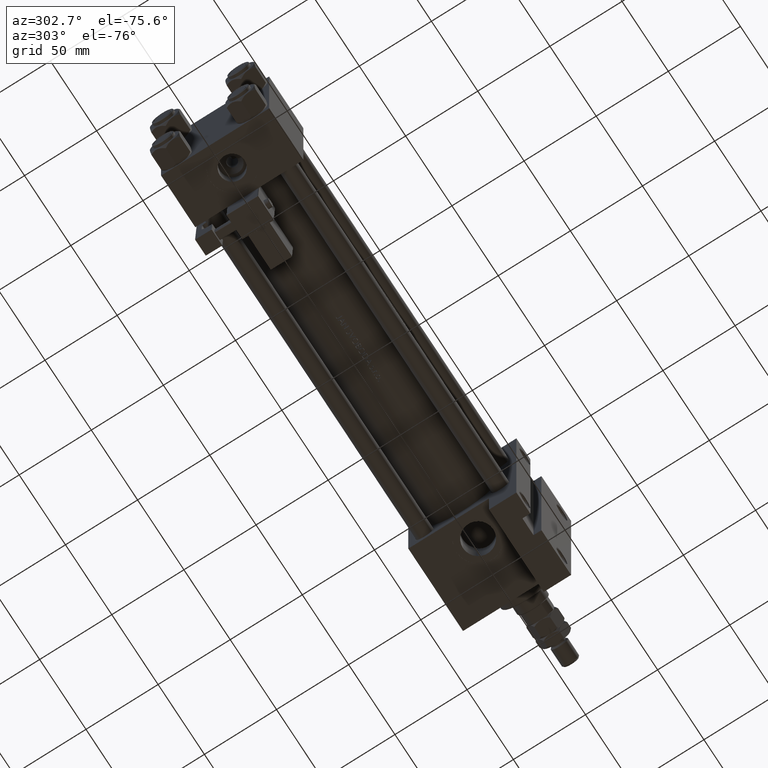
[diagram: clean part render]
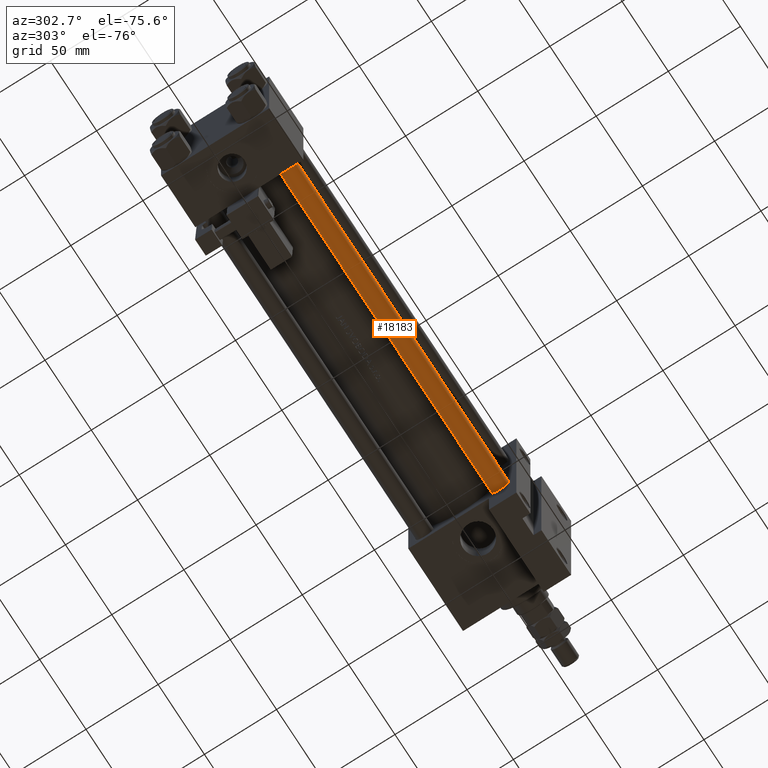
[diagram: same view with one face highlighted and labeled with its STEP entity id]
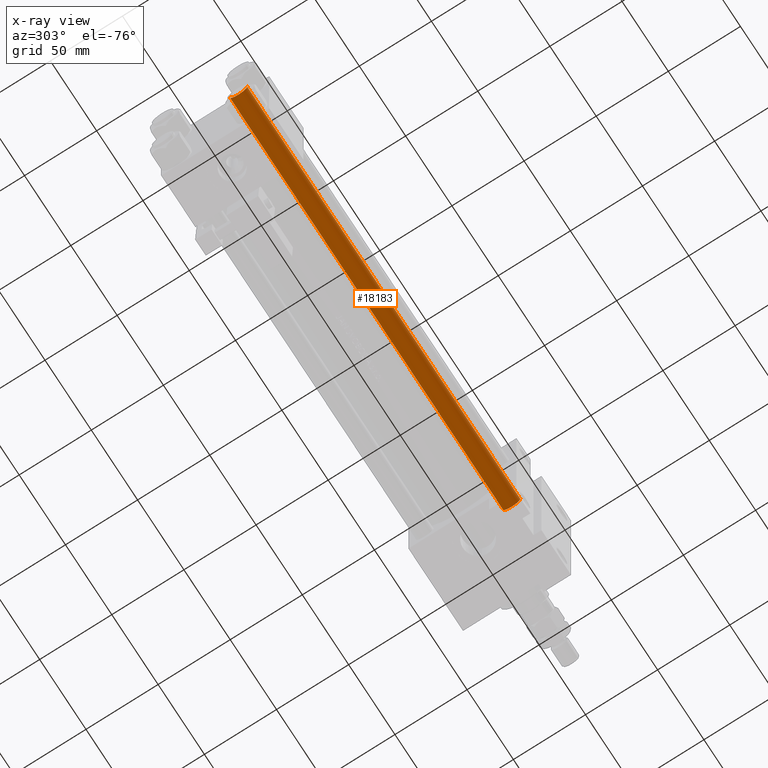
[diagram: x-ray of the same camera — body ghosted, the highlighted face saturated]
A machine part, auxiliary view. The second image highlights one B-rep face of the part: STEP entity #18183.
The next image is the same camera in x-ray: the body ghosted, the highlighted face saturated — about 0% of this face is hidden behind the body in this view.
In plain terms, the highlighted cylindrical surface (edge-blend (fillet) strip) has radius 6 mm, axis along (-1, -0, 0).
Its self-contained STEP definition (entity closure, byte-faithful):
#5163 = CARTESIAN_POINT ( 'NONE',  ( 6.000000000000000888, 7.347880794884120722E-16, 295.4999999999999432 ) ) ;
#6320 = AXIS2_PLACEMENT_3D ( 'NONE', #10368, #38668, #14777 ) ;
#6553 = EDGE_CURVE ( 'NONE', #50585, #50276, #34918, .T. ) ;
#7087 = VECTOR ( 'NONE', #28251, 1000.000000000000000 ) ;
#10368 = CARTESIAN_POINT ( 'NONE',  ( 0.000000000000000000, 0.000000000000000000, 295.4999999999999432 ) ) ;
#12932 = ORIENTED_EDGE ( 'NONE', *, *, #44148, .T. ) ;
#13040 = EDGE_CURVE ( 'NONE', #50253, #22755, #43674, .T. ) ;
#13487 = AXIS2_PLACEMENT_3D ( 'NONE', #39477, #48318, #20757 ) ;
#14777 = DIRECTION ( 'NONE',  ( 1.000000000000000000, 0.000000000000000000, 0.000000000000000000 ) ) ;
#18183 = ADVANCED_FACE ( 'NONE', ( #32192 ), #32435, .T. ) ;
#18421 = DIRECTION ( 'NONE',  ( -0.000000000000000000, -0.000000000000000000, 1.000000000000000000 ) ) ;
#19173 = DIRECTION ( 'NONE',  ( 1.000000000000000000, 0.000000000000000000, 0.000000000000000000 ) ) ;
#20049 = EDGE_CURVE ( 'NONE', #50253, #50276, #39695, .T. ) ;
#20757 = DIRECTION ( 'NONE',  ( -1.000000000000000000, 0.000000000000000000, 0.000000000000000000 ) ) ;
#22755 = VERTEX_POINT ( 'NONE', #39330 ) ;
#25786 = AXIS2_PLACEMENT_3D ( 'NONE', #35021, #18421, #19173 ) ;
#28251 = DIRECTION ( 'NONE',  ( -0.000000000000000000, -0.000000000000000000, -1.000000000000000000 ) ) ;
#28403 = EDGE_LOOP ( 'NONE', ( #51370, #36365, #12932, #39368 ) ) ;
#28495 = CARTESIAN_POINT ( 'NONE',  ( 6.000000000000000888, 7.347880794884120722E-16, 296.0000000000000000 ) ) ;
#31855 = CARTESIAN_POINT ( 'NONE',  ( -6.000000000000000888, 0.000000000000000000, 0.4999999999999449329 ) ) ;
#32192 = FACE_OUTER_BOUND ( 'NONE', #28403, .T. ) ;
#32435 = CYLINDRICAL_SURFACE ( 'NONE', #13487, 6.000000000000000888 ) ;
#33045 = DIRECTION ( 'NONE',  ( -0.000000000000000000, -0.000000000000000000, -1.000000000000000000 ) ) ;
#33130 = VECTOR ( 'NONE', #33045, 1000.000000000000000 ) ;
#34887 = CARTESIAN_POINT ( 'NONE',  ( -6.000000000000000888, 0.000000000000000000, 296.0000000000000000 ) ) ;
#34918 = CIRCLE ( 'NONE', #25786, 6.000000000000000888 ) ;
#35021 = CARTESIAN_POINT ( 'NONE',  ( 0.000000000000000000, 0.000000000000000000, 0.4999999999999449329 ) ) ;
#36365 = ORIENTED_EDGE ( 'NONE', *, *, #13040, .T. ) ;
#38668 = DIRECTION ( 'NONE',  ( 0.000000000000000000, 0.000000000000000000, -1.000000000000000000 ) ) ;
#39330 = CARTESIAN_POINT ( 'NONE',  ( -6.000000000000000888, 0.000000000000000000, 295.4999999999999432 ) ) ;
#39368 = ORIENTED_EDGE ( 'NONE', *, *, #6553, .T. ) ;
#39477 = CARTESIAN_POINT ( 'NONE',  ( 0.000000000000000000, 0.000000000000000000, 296.0000000000000000 ) ) ;
#39695 = LINE ( 'NONE', #28495, #7087 ) ;
#43674 = CIRCLE ( 'NONE', #6320, 6.000000000000000888 ) ;
#44148 = EDGE_CURVE ( 'NONE', #22755, #50585, #50502, .T. ) ;
#48318 = DIRECTION ( 'NONE',  ( -0.000000000000000000, -0.000000000000000000, -1.000000000000000000 ) ) ;
#49075 = CARTESIAN_POINT ( 'NONE',  ( 6.000000000000000888, 7.347880794884120722E-16, 0.4999999999999449329 ) ) ;
#50253 = VERTEX_POINT ( 'NONE', #5163 ) ;
#50276 = VERTEX_POINT ( 'NONE', #49075 ) ;
#50502 = LINE ( 'NONE', #34887, #33130 ) ;
#50585 = VERTEX_POINT ( 'NONE', #31855 ) ;
#51370 = ORIENTED_EDGE ( 'NONE', *, *, #20049, .F. ) ;